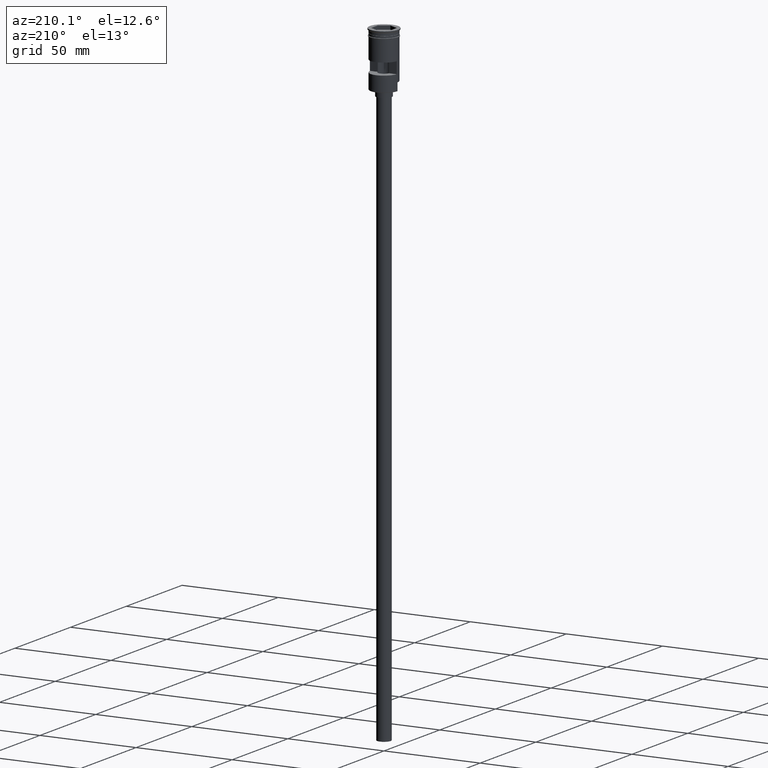
[diagram: clean part render]
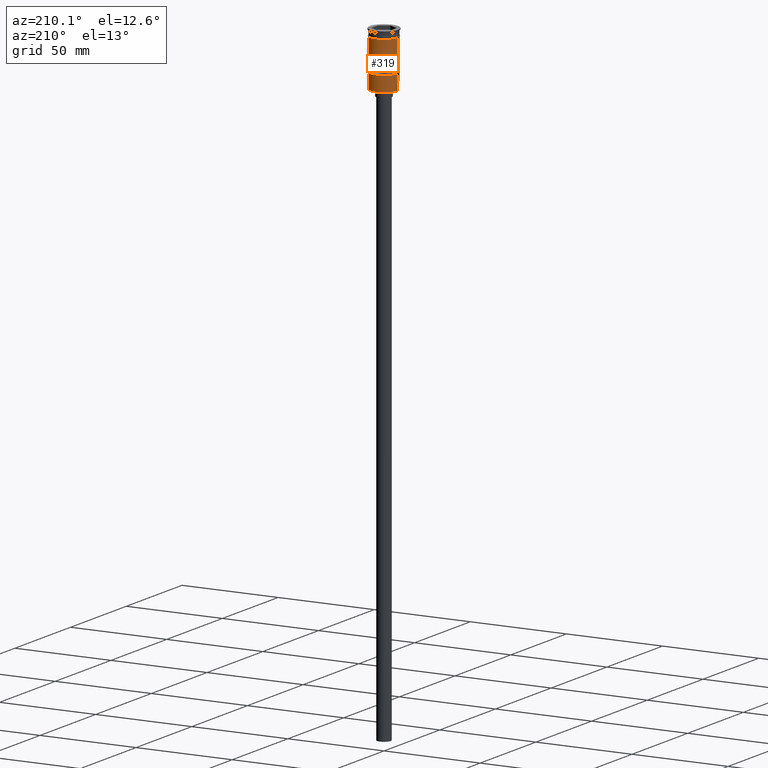
[diagram: same view with one face highlighted and labeled with its STEP entity id]
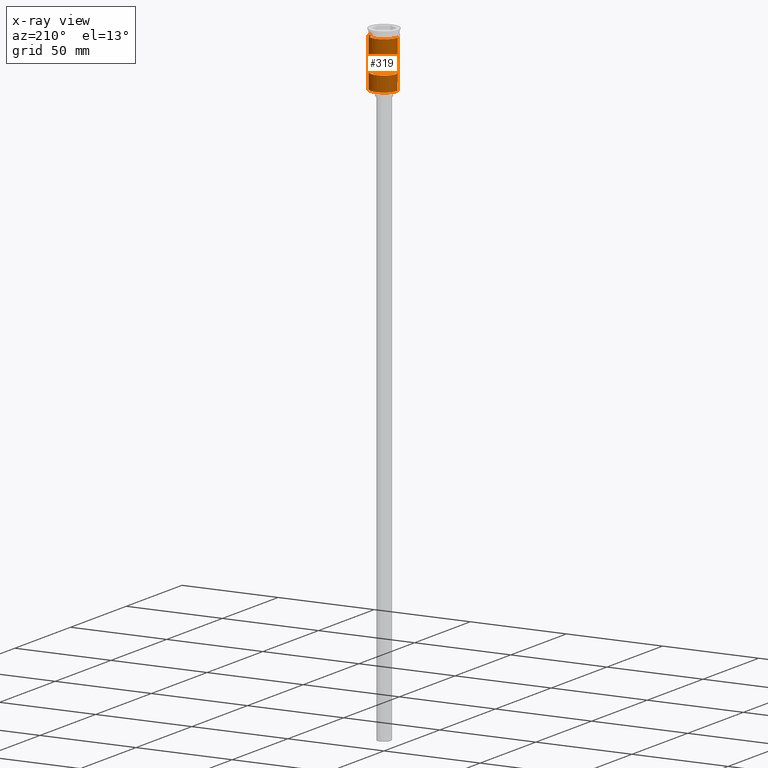
[diagram: x-ray of the same camera — body ghosted, the highlighted face saturated]
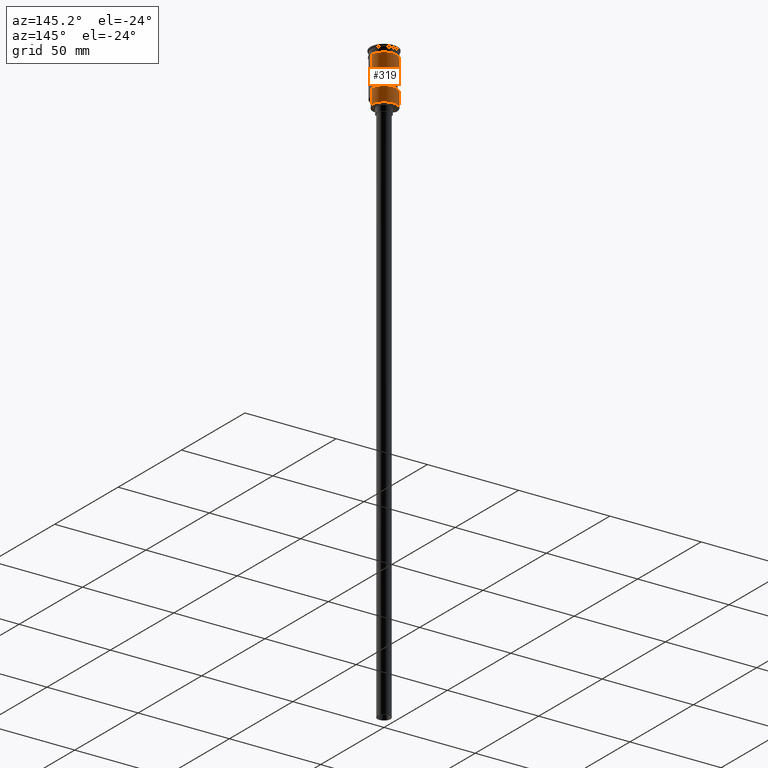
[diagram: same view with one face highlighted and labeled with its STEP entity id]
A machine part, auxiliary view. The second image highlights one B-rep face of the part: STEP entity #319.
The next image is the same camera in x-ray: the body ghosted, the highlighted face saturated — about 0% of this face is hidden behind the body in this view.
A second angle (auxiliary view) of the same face is appended — the face is thin or edge-on in the first view.
In plain terms, the highlighted cylindrical surface (edge-blend (fillet) strip) has radius 7 mm, axis along (-0, -0, 1).
Its self-contained STEP definition (entity closure, byte-faithful):
#5 = VECTOR ( 'NONE', #61, 1000.000000000000000 ) ;
#7 = CARTESIAN_POINT ( 'NONE',  ( -6.999999999999993783, 0.000000000000000000, -28.50000000000000000 ) ) ;
#39 = AXIS2_PLACEMENT_3D ( 'NONE', #828, #1096, #205 ) ;
#55 = ORIENTED_EDGE ( 'NONE', *, *, #186, .F. ) ;
#59 = CIRCLE ( 'NONE', #614, 6.999999999999996447 ) ;
#61 = DIRECTION ( 'NONE',  ( -0.000000000000000000, -0.000000000000000000, 1.000000000000000000 ) ) ;
#64 = VERTEX_POINT ( 'NONE', #388 ) ;
#70 = CARTESIAN_POINT ( 'NONE',  ( 6.999999999999993783, 8.572527594031465301E-16, -28.30000000000002203 ) ) ;
#114 = EDGE_CURVE ( 'NONE', #1179, #1124, #1417, .T. ) ;
#121 = DIRECTION ( 'NONE',  ( -0.000000000000000000, -5.421010862427526114E-16, 1.000000000000000000 ) ) ;
#129 = CIRCLE ( 'NONE', #535, 6.999999999999999112 ) ;
#144 = EDGE_CURVE ( 'NONE', #64, #1048, #673, .T. ) ;
#156 = DIRECTION ( 'NONE',  ( 0.000000000000000000, -1.000000000000000000, 2.478176394252582620E-16 ) ) ;
#169 = ORIENTED_EDGE ( 'NONE', *, *, #1240, .F. ) ;
#170 = CARTESIAN_POINT ( 'NONE',  ( 6.999999999999993783, 8.572527594031465301E-16, -28.50000000000000000 ) ) ;
#181 = LINE ( 'NONE', #1166, #5 ) ;
#186 = EDGE_CURVE ( 'NONE', #957, #1048, #129, .T. ) ;
#188 = CARTESIAN_POINT ( 'NONE',  ( 6.974238309665075519, 0.5999999999999999778, -14.50000000000000178 ) ) ;
#205 = DIRECTION ( 'NONE',  ( -1.000000000000000000, 0.000000000000000000, 0.000000000000000000 ) ) ;
#211 = VERTEX_POINT ( 'NONE', #781 ) ;
#216 = CARTESIAN_POINT ( 'NONE',  ( -6.974238309665074631, 0.5999999999999999778, -20.50000000000000000 ) ) ;
#219 = CIRCLE ( 'NONE', #727, 6.999999999999996447 ) ;
#243 = EDGE_CURVE ( 'NONE', #721, #332, #181, .T. ) ;
#288 = CARTESIAN_POINT ( 'NONE',  ( -7.000000000000000000, 8.572527594031472204E-16, -3.799999999999998490 ) ) ;
#312 = DIRECTION ( 'NONE',  ( -0.000000000000000000, -0.000000000000000000, 1.000000000000000000 ) ) ;
#319 = ADVANCED_FACE ( 'NONE', ( #1085, #1322 ), #1197, .T. ) ;
#322 = ORIENTED_EDGE ( 'NONE', *, *, #1584, .T. ) ;
#332 = VERTEX_POINT ( 'NONE', #1599 ) ;
#334 = VECTOR ( 'NONE', #1037, 1000.000000000000000 ) ;
#353 = DIRECTION ( 'NONE',  ( 1.000000000000000000, 0.000000000000000000, 0.000000000000000000 ) ) ;
#388 = CARTESIAN_POINT ( 'NONE',  ( -6.999999999999993783, 0.000000000000000000, -24.30000000000006466 ) ) ;
#407 = VECTOR ( 'NONE', #312, 1000.000000000000000 ) ;
#491 = EDGE_LOOP ( 'NONE', ( #1470, #674, #1521, #597 ) ) ;
#534 = VERTEX_POINT ( 'NONE', #70 ) ;
#535 = AXIS2_PLACEMENT_3D ( 'NONE', #664, #814, #1297 ) ;
#544 = VECTOR ( 'NONE', #1062, 1000.000000000000000 ) ;
#597 = ORIENTED_EDGE ( 'NONE', *, *, #243, .F. ) ;
#614 = AXIS2_PLACEMENT_3D ( 'NONE', #725, #121, #979 ) ;
#649 = CARTESIAN_POINT ( 'NONE',  ( 6.999999999999996447, 8.572527594031468259E-16, -24.30000000000006466 ) ) ;
#652 = LINE ( 'NONE', #170, #703 ) ;
#664 = CARTESIAN_POINT ( 'NONE',  ( 0.000000000000000000, 0.000000000000000000, -3.799999999999998490 ) ) ;
#673 = LINE ( 'NONE', #1425, #407 ) ;
#674 = ORIENTED_EDGE ( 'NONE', *, *, #114, .F. ) ;
#684 = LINE ( 'NONE', #1183, #544 ) ;
#703 = VECTOR ( 'NONE', #1156, 1000.000000000000000 ) ;
#721 = VERTEX_POINT ( 'NONE', #216 ) ;
#725 = CARTESIAN_POINT ( 'NONE',  ( 0.000000000000000000, 0.000000000000000000, -20.50000000000000000 ) ) ;
#727 = AXIS2_PLACEMENT_3D ( 'NONE', #769, #1266, #156 ) ;
#728 = CIRCLE ( 'NONE', #39, 6.999999999999996447 ) ;
#769 = CARTESIAN_POINT ( 'NONE',  ( 0.000000000000000000, 0.000000000000000000, -14.50000000000000178 ) ) ;
#773 = CARTESIAN_POINT ( 'NONE',  ( 6.999999999999999112, 0.000000000000000000, -3.799999999999998490 ) ) ;
#781 = CARTESIAN_POINT ( 'NONE',  ( -6.999999999999993783, 0.000000000000000000, -28.30000000000002203 ) ) ;
#796 = CARTESIAN_POINT ( 'NONE',  ( 6.974238309665074631, 0.5999999999999999778, 0.000000000000000000 ) ) ;
#814 = DIRECTION ( 'NONE',  ( -0.000000000000000000, -0.000000000000000000, 1.000000000000000000 ) ) ;
#828 = CARTESIAN_POINT ( 'NONE',  ( 0.000000000000000000, 0.000000000000000000, -28.30000000000002203 ) ) ;
#909 = EDGE_CURVE ( 'NONE', #1124, #721, #59, .T. ) ;
#934 = EDGE_CURVE ( 'NONE', #332, #1179, #219, .T. ) ;
#947 = DIRECTION ( 'NONE',  ( -0.000000000000000000, -0.000000000000000000, 1.000000000000000000 ) ) ;
#949 = ORIENTED_EDGE ( 'NONE', *, *, #1270, .T. ) ;
#957 = VERTEX_POINT ( 'NONE', #773 ) ;
#968 = CARTESIAN_POINT ( 'NONE',  ( 0.000000000000000000, 0.000000000000000000, 0.000000000000000000 ) ) ;
#979 = DIRECTION ( 'NONE',  ( 0.000000000000000000, 1.000000000000000000, 4.956352788505165240E-16 ) ) ;
#991 = ORIENTED_EDGE ( 'NONE', *, *, #144, .T. ) ;
#1026 = EDGE_LOOP ( 'NONE', ( #949, #991, #55, #169, #1254, #322 ) ) ;
#1037 = DIRECTION ( 'NONE',  ( 0.000000000000000000, 0.000000000000000000, -1.000000000000000000 ) ) ;
#1048 = VERTEX_POINT ( 'NONE', #288 ) ;
#1062 = DIRECTION ( 'NONE',  ( -0.000000000000000000, -0.000000000000000000, 1.000000000000000000 ) ) ;
#1066 = VERTEX_POINT ( 'NONE', #649 ) ;
#1085 = FACE_BOUND ( 'NONE', #491, .T. ) ;
#1096 = DIRECTION ( 'NONE',  ( 0.000000000000000000, 0.000000000000000000, 1.000000000000000000 ) ) ;
#1124 = VERTEX_POINT ( 'NONE', #1581 ) ;
#1127 = LINE ( 'NONE', #7, #1570 ) ;
#1156 = DIRECTION ( 'NONE',  ( -0.000000000000000000, -0.000000000000000000, 1.000000000000000000 ) ) ;
#1166 = CARTESIAN_POINT ( 'NONE',  ( -6.974238309665074631, 0.5999999999999999778, 0.000000000000000000 ) ) ;
#1179 = VERTEX_POINT ( 'NONE', #188 ) ;
#1183 = CARTESIAN_POINT ( 'NONE',  ( 6.999999999999996447, 0.000000000000000000, 0.000000000000000000 ) ) ;
#1197 = CYLINDRICAL_SURFACE ( 'NONE', #1215, 6.999999999999996447 ) ;
#1215 = AXIS2_PLACEMENT_3D ( 'NONE', #968, #947, #353 ) ;
#1240 = EDGE_CURVE ( 'NONE', #1066, #957, #684, .T. ) ;
#1254 = ORIENTED_EDGE ( 'NONE', *, *, #1462, .F. ) ;
#1266 = DIRECTION ( 'NONE',  ( -0.000000000000000000, -2.710505431213763057E-16, -1.000000000000000000 ) ) ;
#1270 = EDGE_CURVE ( 'NONE', #211, #64, #1127, .T. ) ;
#1297 = DIRECTION ( 'NONE',  ( 1.000000000000000000, 0.000000000000000000, 0.000000000000000000 ) ) ;
#1322 = FACE_OUTER_BOUND ( 'NONE', #1026, .T. ) ;
#1417 = LINE ( 'NONE', #796, #334 ) ;
#1425 = CARTESIAN_POINT ( 'NONE',  ( -6.999999999999996447, 8.572527594031468259E-16, 0.000000000000000000 ) ) ;
#1462 = EDGE_CURVE ( 'NONE', #534, #1066, #652, .T. ) ;
#1470 = ORIENTED_EDGE ( 'NONE', *, *, #909, .F. ) ;
#1515 = DIRECTION ( 'NONE',  ( -0.000000000000000000, -0.000000000000000000, 1.000000000000000000 ) ) ;
#1521 = ORIENTED_EDGE ( 'NONE', *, *, #934, .F. ) ;
#1570 = VECTOR ( 'NONE', #1515, 1000.000000000000000 ) ;
#1581 = CARTESIAN_POINT ( 'NONE',  ( 6.974238309665075519, 0.5999999999999999778, -20.50000000000000000 ) ) ;
#1584 = EDGE_CURVE ( 'NONE', #534, #211, #728, .T. ) ;
#1599 = CARTESIAN_POINT ( 'NONE',  ( -6.974238309665074631, 0.5999999999999999778, -14.50000000000000178 ) ) ;